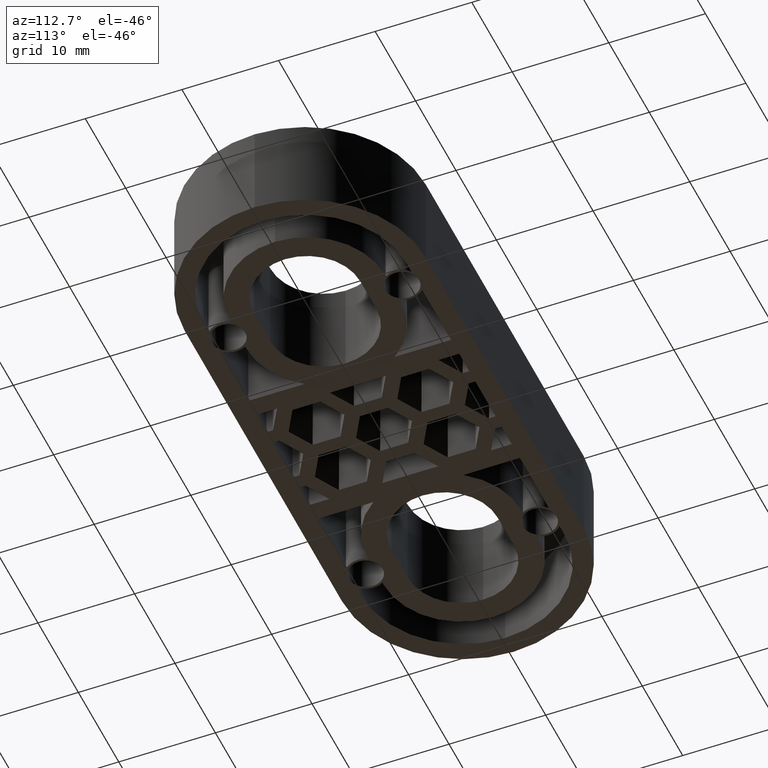
[diagram: clean part render]
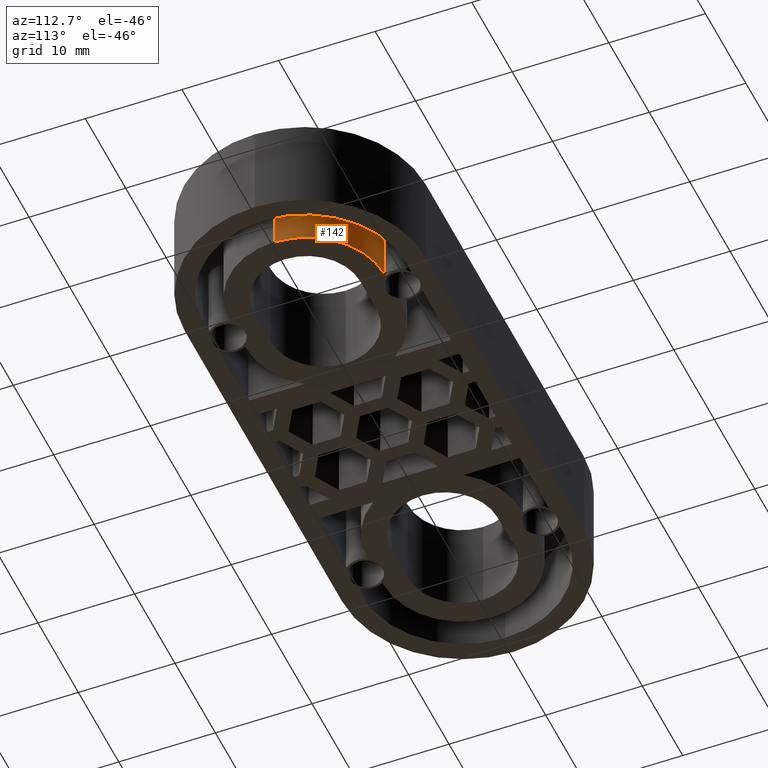
[diagram: same view with one face highlighted and labeled with its STEP entity id]
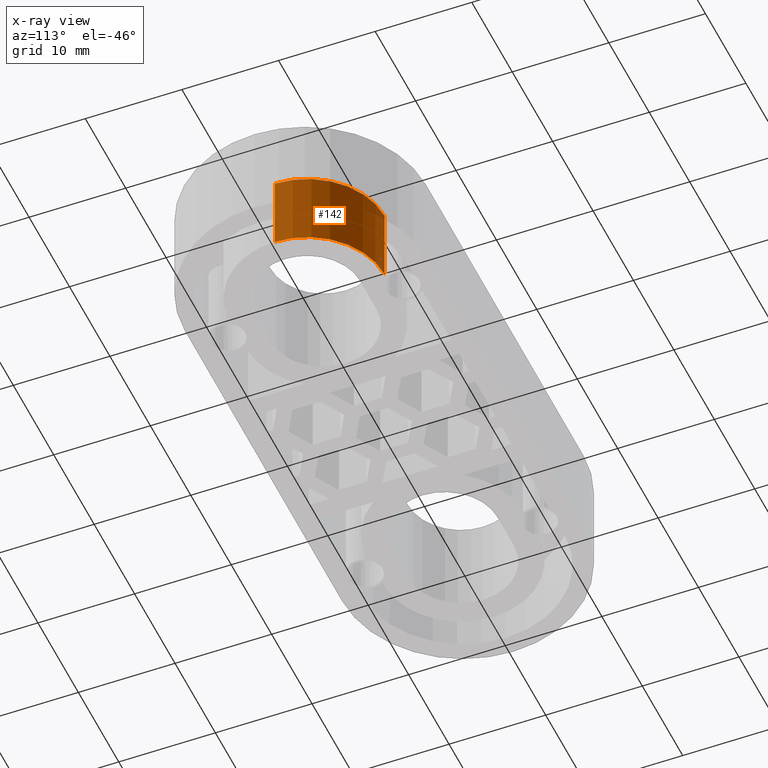
[diagram: x-ray of the same camera — body ghosted, the highlighted face saturated]
A machine part, auxiliary view. The second image highlights one B-rep face of the part: STEP entity #142.
The next image is the same camera in x-ray: the body ghosted, the highlighted face saturated — about 5% of this face is hidden behind the body in this view.
In plain terms, the highlighted cylindrical surface (partial cylindrical patch) has radius 8 mm, axis along (0, -0, -1).
Its self-contained STEP definition (entity closure, byte-faithful):
#142 = ADVANCED_FACE( '', ( #413 ), #414, .T. );
#413 = FACE_OUTER_BOUND( '', #829, .T. );
#414 = CYLINDRICAL_SURFACE( '', #830, 8.00000000000000 );
#829 = EDGE_LOOP( '', ( #1587, #1588, #1589, #1590 ) );
#830 = AXIS2_PLACEMENT_3D( '', #1591, #1592, #1593 );
#1587 = ORIENTED_EDGE( '', *, *, #2757, .T. );
#1588 = ORIENTED_EDGE( '', *, *, #2758, .T. );
#1589 = ORIENTED_EDGE( '', *, *, #2759, .F. );
#1590 = ORIENTED_EDGE( '', *, *, #2760, .T. );
#1591 = CARTESIAN_POINT( '', ( 19.0000000000000, 3.46944695195361E-015, -2.12435339080604E-031 ) );
#1592 = DIRECTION( '', ( 0.000000000000000, -6.12303176911189E-017, -1.00000000000000 ) );
#1593 = DIRECTION( '', ( 6.80427213415695E-017, 1.00000000000000, -6.12303176911189E-017 ) );
#2757 = EDGE_CURVE( '', #3351, #3352, #3353, .T. );
#2758 = EDGE_CURVE( '', #3352, #3354, #3355, .T. );
#2759 = EDGE_CURVE( '', #3356, #3354, #3357, .T. );
#2760 = EDGE_CURVE( '', #3356, #3351, #3358, .T. );
#3351 = VERTEX_POINT( '', #4245 );
#3352 = VERTEX_POINT( '', #4246 );
#3353 = LINE( '', #4247, #4248 );
#3354 = VERTEX_POINT( '', #4249 );
#3355 = CIRCLE( '', #4250, 8.00000000000000 );
#3356 = VERTEX_POINT( '', #4251 );
#3357 = LINE( '', #4252, #4253 );
#3358 = CIRCLE( '', #4254, 8.00000000000000 );
#4245 = CARTESIAN_POINT( '', ( 19.0000000000000, 8.00000000000001, -4.89842541528951E-016 ) );
#4246 = CARTESIAN_POINT( '', ( 19.0000000000000, 8.00000000000001, 8.00000000000000 ) );
#4247 = CARTESIAN_POINT( '', ( 19.0000000000000, 8.00000000000001, -4.89842541528951E-016 ) );
#4248 = VECTOR( '', #5255, 1000.00000000000 );
#4249 = CARTESIAN_POINT( '', ( 27.0000000000000, 3.95928949348257E-015, 8.00000000000000 ) );
#4250 = AXIS2_PLACEMENT_3D( '', #5256, #5257, #5258 );
#4251 = CARTESIAN_POINT( '', ( 27.0000000000000, 3.46944695195361E-015, -2.12435339080604E-031 ) );
#4252 = CARTESIAN_POINT( '', ( 27.0000000000000, 3.46944695195361E-015, -2.12435339080604E-031 ) );
#4253 = VECTOR( '', #5259, 1000.00000000000 );
#4254 = AXIS2_PLACEMENT_3D( '', #5260, #5261, #5262 );
#5255 = DIRECTION( '', ( 0.000000000000000, 6.12303176911189E-017, 1.00000000000000 ) );
#5256 = CARTESIAN_POINT( '', ( 19.0000000000000, 3.95928949348257E-015, 8.00000000000000 ) );
#5257 = DIRECTION( '', ( 0.000000000000000, -6.12303176911189E-017, -1.00000000000000 ) );
#5258 = DIRECTION( '', ( 0.000000000000000, 1.00000000000000, -6.12303176911189E-017 ) );
#5259 = DIRECTION( '', ( 0.000000000000000, 6.12303176911189E-017, 1.00000000000000 ) );
#5260 = CARTESIAN_POINT( '', ( 19.0000000000000, 3.46944695195361E-015, -2.12435339080604E-031 ) );
#5261 = DIRECTION( '', ( 0.000000000000000, 6.12303176911189E-017, 1.00000000000000 ) );
#5262 = DIRECTION( '', ( 6.80427213415695E-017, 1.00000000000000, -6.12303176911189E-017 ) );